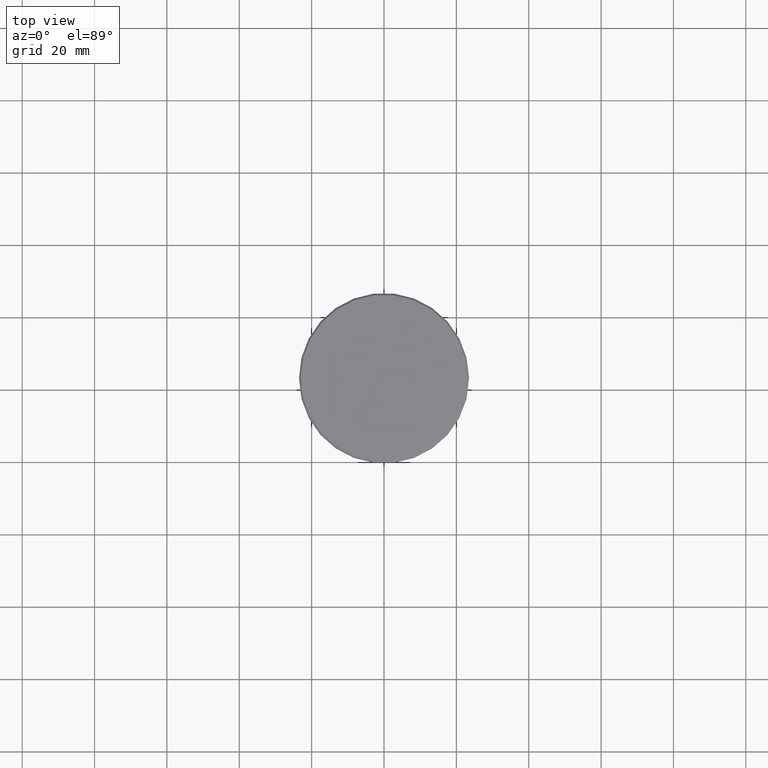
[diagram: clean part render]
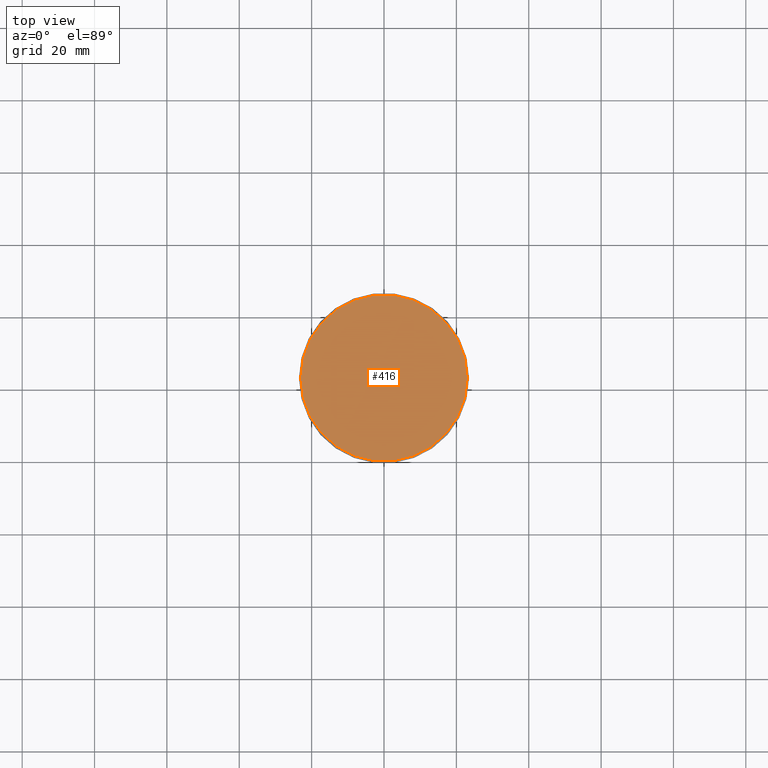
[diagram: same view with one face highlighted and labeled with its STEP entity id]
A machine part, top view. The second image highlights one B-rep face of the part: STEP entity #416.
In plain terms, the highlighted planar face has unit normal (0, -0, 1).
Its self-contained STEP definition (entity closure, byte-faithful):
#115 = EDGE_CURVE ( 'NONE', #897, #289, #1120, .T. ) ;
#289 = VERTEX_POINT ( 'NONE', #769 ) ;
#291 = CARTESIAN_POINT ( 'NONE',  ( 0.000000000000000000, 0.000000000000000000, 0.000000000000000000 ) ) ;
#319 = AXIS2_PLACEMENT_3D ( 'NONE', #291, #846, #768 ) ;
#351 = EDGE_LOOP ( 'NONE', ( #1076, #694 ) ) ;
#373 = DIRECTION ( 'NONE',  ( 1.000000000000000000, 0.000000000000000000, 0.000000000000000000 ) ) ;
#374 = AXIS2_PLACEMENT_3D ( 'NONE', #1006, #920, #373 ) ;
#409 = CARTESIAN_POINT ( 'NONE',  ( 22.99999999999996803, 2.847303808017594561E-15, 0.000000000000000000 ) ) ;
#414 = CARTESIAN_POINT ( 'NONE',  ( 0.000000000000000000, 0.000000000000000000, 0.000000000000000000 ) ) ;
#416 = ADVANCED_FACE ( 'NONE', ( #1062 ), #1167, .T. ) ;
#618 = DIRECTION ( 'NONE',  ( 0.000000000000000000, -0.000000000000000000, 1.000000000000000000 ) ) ;
#694 = ORIENTED_EDGE ( 'NONE', *, *, #115, .T. ) ;
#702 = EDGE_CURVE ( 'NONE', #289, #897, #1058, .T. ) ;
#768 = DIRECTION ( 'NONE',  ( 1.000000000000000000, 0.000000000000000000, 0.000000000000000000 ) ) ;
#769 = CARTESIAN_POINT ( 'NONE',  ( -22.99999999999996803, 0.000000000000000000, 0.000000000000000000 ) ) ;
#846 = DIRECTION ( 'NONE',  ( -0.000000000000000000, -0.000000000000000000, 1.000000000000000000 ) ) ;
#897 = VERTEX_POINT ( 'NONE', #409 ) ;
#920 = DIRECTION ( 'NONE',  ( -0.000000000000000000, -0.000000000000000000, 1.000000000000000000 ) ) ;
#1006 = CARTESIAN_POINT ( 'NONE',  ( 0.000000000000000000, 0.000000000000000000, 0.000000000000000000 ) ) ;
#1054 = DIRECTION ( 'NONE',  ( 1.000000000000000000, 0.000000000000000000, 0.000000000000000000 ) ) ;
#1058 = CIRCLE ( 'NONE', #319, 22.99999999999996803 ) ;
#1062 = FACE_OUTER_BOUND ( 'NONE', #351, .T. ) ;
#1076 = ORIENTED_EDGE ( 'NONE', *, *, #702, .T. ) ;
#1078 = AXIS2_PLACEMENT_3D ( 'NONE', #414, #618, #1054 ) ;
#1120 = CIRCLE ( 'NONE', #374, 22.99999999999996803 ) ;
#1167 = PLANE ( 'NONE',  #1078 ) ;